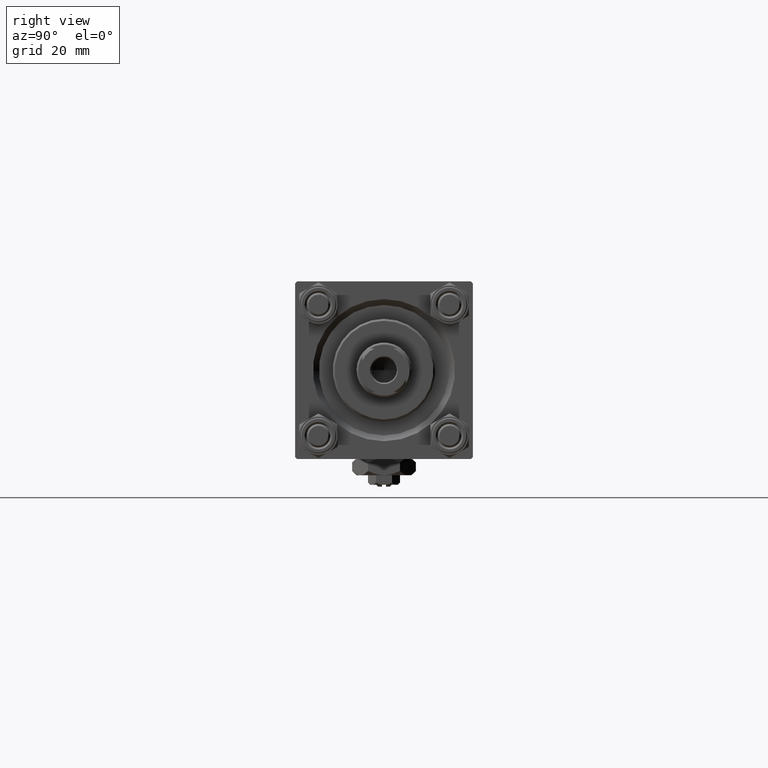
[diagram: clean part render]
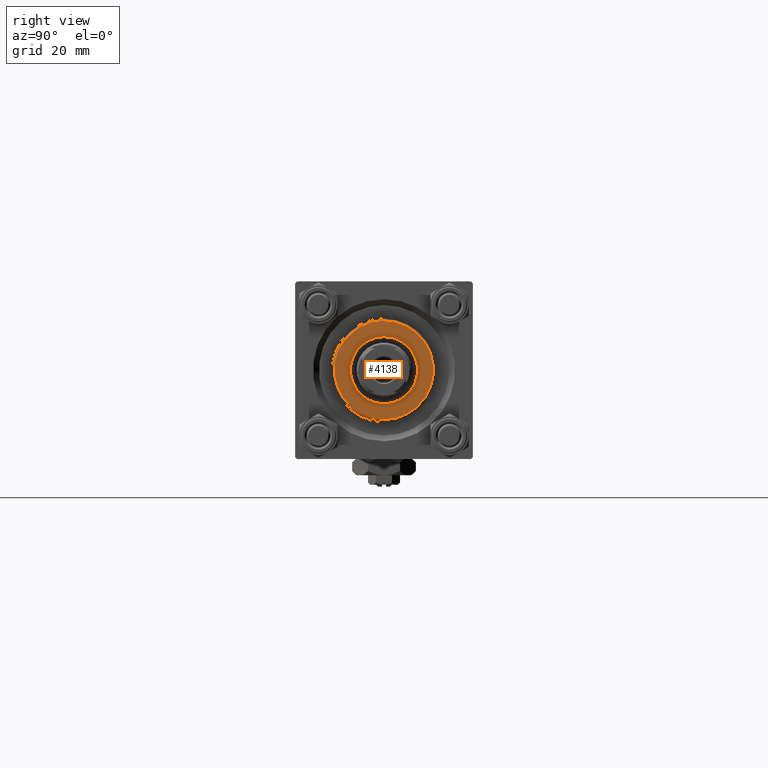
[diagram: same view with one face highlighted and labeled with its STEP entity id]
A machine part, right view. The second image highlights one B-rep face of the part: STEP entity #4138.
In plain terms, the highlighted planar face has unit normal (1, 0, -0).
Its self-contained STEP definition (entity closure, byte-faithful):
#1311 = CIRCLE ( 'NONE', #22213, 12.50000000000001066 ) ;
#2150 = CARTESIAN_POINT ( 'NONE',  ( 8.500000000000000000, 0.000000000000000000, 36.69999999999999574 ) ) ;
#2212 = VERTEX_POINT ( 'NONE', #29037 ) ;
#3105 = AXIS2_PLACEMENT_3D ( 'NONE', #28943, #51601, #39276 ) ;
#3211 = CIRCLE ( 'NONE', #9899, 8.500000000000000000 ) ;
#4129 = AXIS2_PLACEMENT_3D ( 'NONE', #33768, #5182, #30093 ) ;
#4138 = ADVANCED_FACE ( 'NONE', ( #9264, #11972 ), #19837, .T. ) ;
#4407 = EDGE_LOOP ( 'NONE', ( #42595, #28638 ) ) ;
#5182 = DIRECTION ( 'NONE',  ( 0.000000000000000000, 0.000000000000000000, 1.000000000000000000 ) ) ;
#9264 = FACE_BOUND ( 'NONE', #27919, .T. ) ;
#9899 = AXIS2_PLACEMENT_3D ( 'NONE', #22696, #42403, #10372 ) ;
#10372 = DIRECTION ( 'NONE',  ( 1.000000000000000000, 0.000000000000000000, 0.000000000000000000 ) ) ;
#11972 = FACE_OUTER_BOUND ( 'NONE', #4407, .T. ) ;
#13553 = CARTESIAN_POINT ( 'NONE',  ( -12.50000000000001066, 0.000000000000000000, 36.69999999999999574 ) ) ;
#19403 = VERTEX_POINT ( 'NONE', #24747 ) ;
#19837 = PLANE ( 'NONE',  #3105 ) ;
#22213 = AXIS2_PLACEMENT_3D ( 'NONE', #48730, #28774, #44781 ) ;
#22696 = CARTESIAN_POINT ( 'NONE',  ( 0.000000000000000000, 0.000000000000000000, 36.69999999999999574 ) ) ;
#23366 = CIRCLE ( 'NONE', #4129, 8.500000000000000000 ) ;
#24747 = CARTESIAN_POINT ( 'NONE',  ( 12.50000000000001066, 1.561424668912876097E-15, 36.69999999999999574 ) ) ;
#24859 = EDGE_CURVE ( 'NONE', #37801, #19403, #36795, .T. ) ;
#25141 = EDGE_CURVE ( 'NONE', #2212, #31537, #23366, .T. ) ;
#27919 = EDGE_LOOP ( 'NONE', ( #33653, #35990 ) ) ;
#28638 = ORIENTED_EDGE ( 'NONE', *, *, #37747, .T. ) ;
#28774 = DIRECTION ( 'NONE',  ( 0.000000000000000000, 0.000000000000000000, 1.000000000000000000 ) ) ;
#28943 = CARTESIAN_POINT ( 'NONE',  ( 0.000000000000000000, 0.000000000000000000, 36.69999999999999574 ) ) ;
#29037 = CARTESIAN_POINT ( 'NONE',  ( -8.500000000000000000, 1.040949779275250140E-15, 36.69999999999999574 ) ) ;
#30093 = DIRECTION ( 'NONE',  ( 1.000000000000000000, 0.000000000000000000, 0.000000000000000000 ) ) ;
#30418 = DIRECTION ( 'NONE',  ( 0.000000000000000000, 0.000000000000000000, 1.000000000000000000 ) ) ;
#31537 = VERTEX_POINT ( 'NONE', #2150 ) ;
#33653 = ORIENTED_EDGE ( 'NONE', *, *, #44596, .F. ) ;
#33768 = CARTESIAN_POINT ( 'NONE',  ( 0.000000000000000000, 0.000000000000000000, 36.69999999999999574 ) ) ;
#34094 = CARTESIAN_POINT ( 'NONE',  ( 0.000000000000000000, 0.000000000000000000, 36.69999999999999574 ) ) ;
#35990 = ORIENTED_EDGE ( 'NONE', *, *, #25141, .F. ) ;
#36795 = CIRCLE ( 'NONE', #51029, 12.50000000000001066 ) ;
#37747 = EDGE_CURVE ( 'NONE', #19403, #37801, #1311, .T. ) ;
#37801 = VERTEX_POINT ( 'NONE', #13553 ) ;
#39276 = DIRECTION ( 'NONE',  ( 1.000000000000000000, 0.000000000000000000, -0.000000000000000000 ) ) ;
#41715 = DIRECTION ( 'NONE',  ( 1.000000000000000000, 0.000000000000000000, 0.000000000000000000 ) ) ;
#42403 = DIRECTION ( 'NONE',  ( 0.000000000000000000, 0.000000000000000000, 1.000000000000000000 ) ) ;
#42595 = ORIENTED_EDGE ( 'NONE', *, *, #24859, .T. ) ;
#44596 = EDGE_CURVE ( 'NONE', #31537, #2212, #3211, .T. ) ;
#44781 = DIRECTION ( 'NONE',  ( 1.000000000000000000, 0.000000000000000000, 0.000000000000000000 ) ) ;
#48730 = CARTESIAN_POINT ( 'NONE',  ( 0.000000000000000000, 0.000000000000000000, 36.69999999999999574 ) ) ;
#51029 = AXIS2_PLACEMENT_3D ( 'NONE', #34094, #30418, #41715 ) ;
#51601 = DIRECTION ( 'NONE',  ( 0.000000000000000000, 0.000000000000000000, 1.000000000000000000 ) ) ;